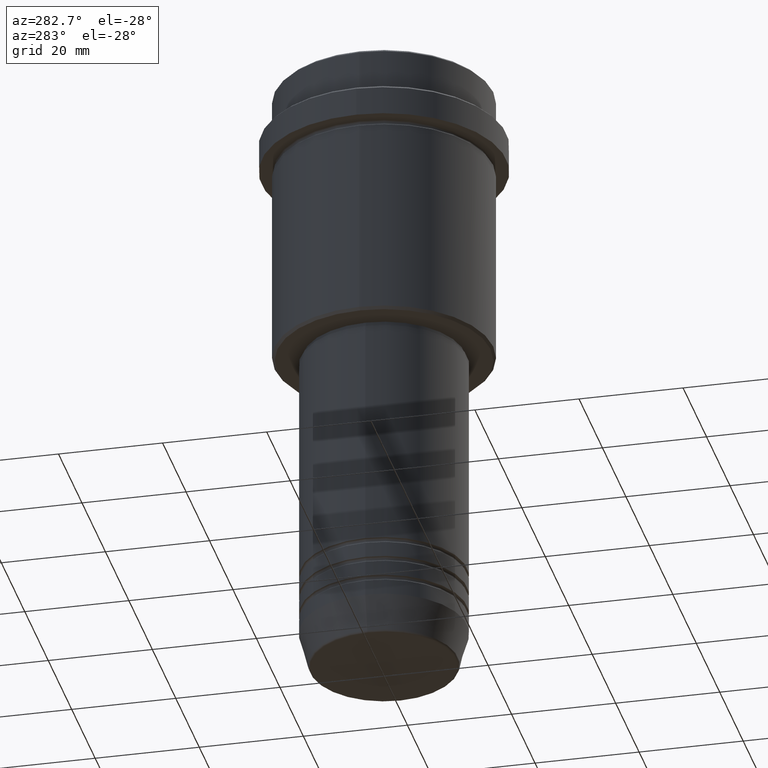
[diagram: clean part render]
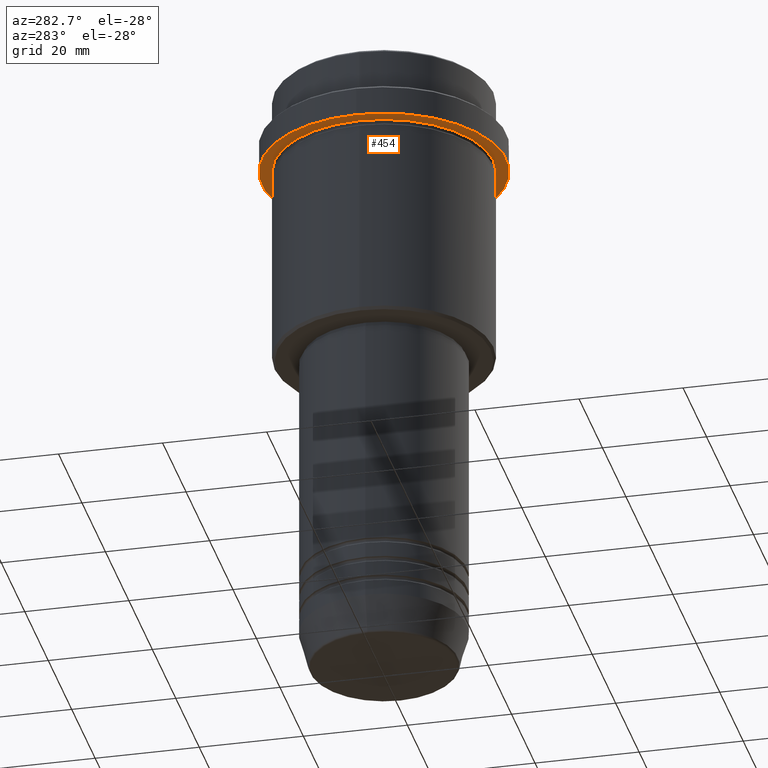
[diagram: same view with one face highlighted and labeled with its STEP entity id]
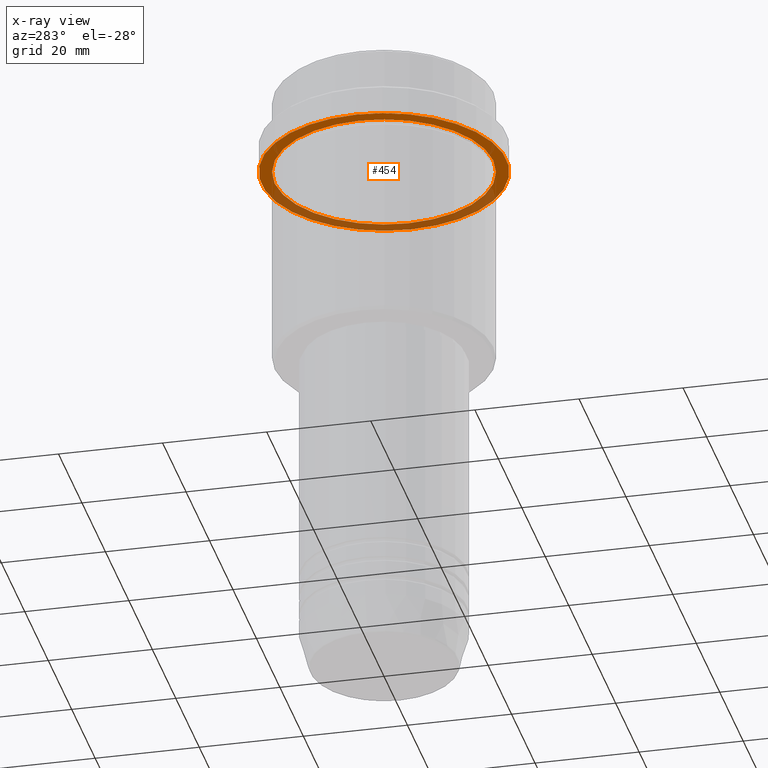
[diagram: x-ray of the same camera — body ghosted, the highlighted face saturated]
A machine part, auxiliary view. The second image highlights one B-rep face of the part: STEP entity #454.
The next image is the same camera in x-ray: the body ghosted, the highlighted face saturated — about 38% of this face is hidden behind the body in this view.
In plain terms, the highlighted planar face has unit normal (0, 0, -1).
Its self-contained STEP definition (entity closure, byte-faithful):
#56 = VERTEX_POINT ( 'NONE', #1257 ) ;
#64 = AXIS2_PLACEMENT_3D ( 'NONE', #1128, #67, #716 ) ;
#67 = DIRECTION ( 'NONE',  ( -0.000000000000000000, -0.000000000000000000, 1.000000000000000000 ) ) ;
#104 = DIRECTION ( 'NONE',  ( 1.000000000000000000, 0.000000000000000000, 0.000000000000000000 ) ) ;
#118 = ORIENTED_EDGE ( 'NONE', *, *, #500, .F. ) ;
#227 = DIRECTION ( 'NONE',  ( 0.000000000000000000, 0.000000000000000000, -1.000000000000000000 ) ) ;
#256 = CARTESIAN_POINT ( 'NONE',  ( 23.50000000000000355, 0.000000000000000000, -15.00000000000000000 ) ) ;
#336 = PLANE ( 'NONE',  #535 ) ;
#345 = EDGE_CURVE ( 'NONE', #56, #690, #1009, .T. ) ;
#430 = AXIS2_PLACEMENT_3D ( 'NONE', #1119, #646, #104 ) ;
#443 = CARTESIAN_POINT ( 'NONE',  ( -23.50000000000000711, 2.877919977996281109E-15, -15.00000000000000000 ) ) ;
#454 = ADVANCED_FACE ( 'NONE', ( #898, #571 ), #336, .T. ) ;
#500 = EDGE_CURVE ( 'NONE', #941, #711, #1292, .T. ) ;
#503 = DIRECTION ( 'NONE',  ( -0.000000000000000000, -0.000000000000000000, 1.000000000000000000 ) ) ;
#504 = EDGE_CURVE ( 'NONE', #690, #56, #867, .T. ) ;
#535 = AXIS2_PLACEMENT_3D ( 'NONE', #777, #227, #1331 ) ;
#571 = FACE_OUTER_BOUND ( 'NONE', #1129, .T. ) ;
#646 = DIRECTION ( 'NONE',  ( -0.000000000000000000, -0.000000000000000000, 1.000000000000000000 ) ) ;
#682 = CIRCLE ( 'NONE', #430, 23.50000000000000355 ) ;
#690 = VERTEX_POINT ( 'NONE', #772 ) ;
#709 = ORIENTED_EDGE ( 'NONE', *, *, #345, .T. ) ;
#711 = VERTEX_POINT ( 'NONE', #443 ) ;
#716 = DIRECTION ( 'NONE',  ( -1.000000000000000000, 0.000000000000000000, 0.000000000000000000 ) ) ;
#772 = CARTESIAN_POINT ( 'NONE',  ( 20.99999999999999289, 2.571758278209440872E-15, -15.00000000000000178 ) ) ;
#777 = CARTESIAN_POINT ( 'NONE',  ( 0.000000000000000000, 23.50000000000000355, -15.00000000000000178 ) ) ;
#795 = DIRECTION ( 'NONE',  ( -0.000000000000000000, -0.000000000000000000, 1.000000000000000000 ) ) ;
#867 = CIRCLE ( 'NONE', #1100, 20.99999999999999289 ) ;
#874 = EDGE_LOOP ( 'NONE', ( #709, #1178 ) ) ;
#898 = FACE_BOUND ( 'NONE', #874, .T. ) ;
#941 = VERTEX_POINT ( 'NONE', #256 ) ;
#943 = CARTESIAN_POINT ( 'NONE',  ( 0.000000000000000000, 0.000000000000000000, -15.00000000000000178 ) ) ;
#1009 = CIRCLE ( 'NONE', #64, 20.99999999999999289 ) ;
#1059 = CARTESIAN_POINT ( 'NONE',  ( 0.000000000000000000, 0.000000000000000000, -15.00000000000000000 ) ) ;
#1100 = AXIS2_PLACEMENT_3D ( 'NONE', #943, #795, #1201 ) ;
#1119 = CARTESIAN_POINT ( 'NONE',  ( 0.000000000000000000, 0.000000000000000000, -15.00000000000000000 ) ) ;
#1128 = CARTESIAN_POINT ( 'NONE',  ( 0.000000000000000000, 0.000000000000000000, -15.00000000000000178 ) ) ;
#1129 = EDGE_LOOP ( 'NONE', ( #118, #1177 ) ) ;
#1177 = ORIENTED_EDGE ( 'NONE', *, *, #1307, .F. ) ;
#1178 = ORIENTED_EDGE ( 'NONE', *, *, #504, .T. ) ;
#1201 = DIRECTION ( 'NONE',  ( -1.000000000000000000, 0.000000000000000000, 0.000000000000000000 ) ) ;
#1257 = CARTESIAN_POINT ( 'NONE',  ( -20.99999999999999289, 0.000000000000000000, -15.00000000000000178 ) ) ;
#1292 = CIRCLE ( 'NONE', #1362, 23.50000000000000355 ) ;
#1307 = EDGE_CURVE ( 'NONE', #711, #941, #682, .T. ) ;
#1331 = DIRECTION ( 'NONE',  ( -1.000000000000000000, 0.000000000000000000, -0.000000000000000000 ) ) ;
#1362 = AXIS2_PLACEMENT_3D ( 'NONE', #1059, #503, #1374 ) ;
#1374 = DIRECTION ( 'NONE',  ( 1.000000000000000000, 0.000000000000000000, 0.000000000000000000 ) ) ;